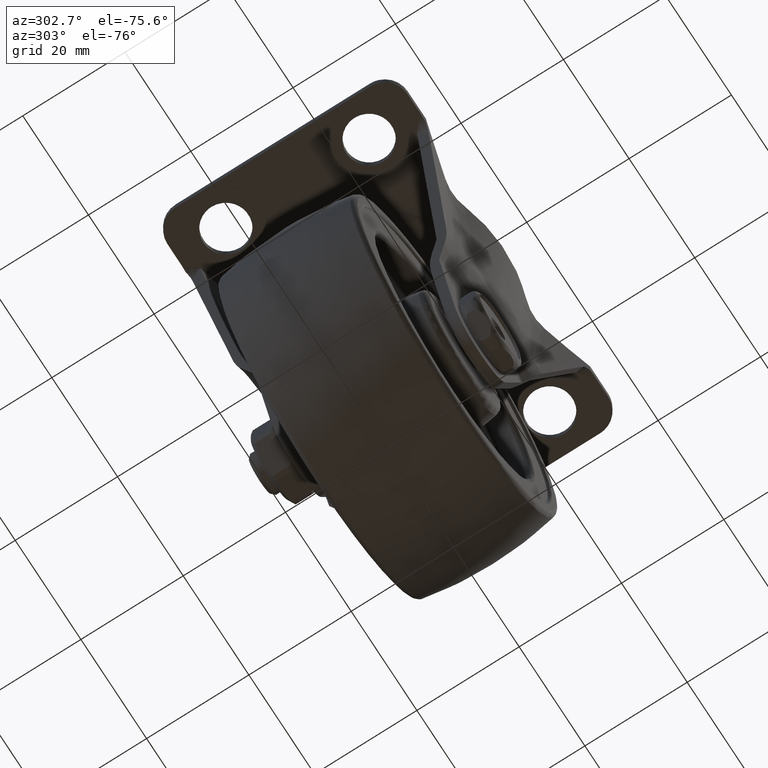
[diagram: clean part render]
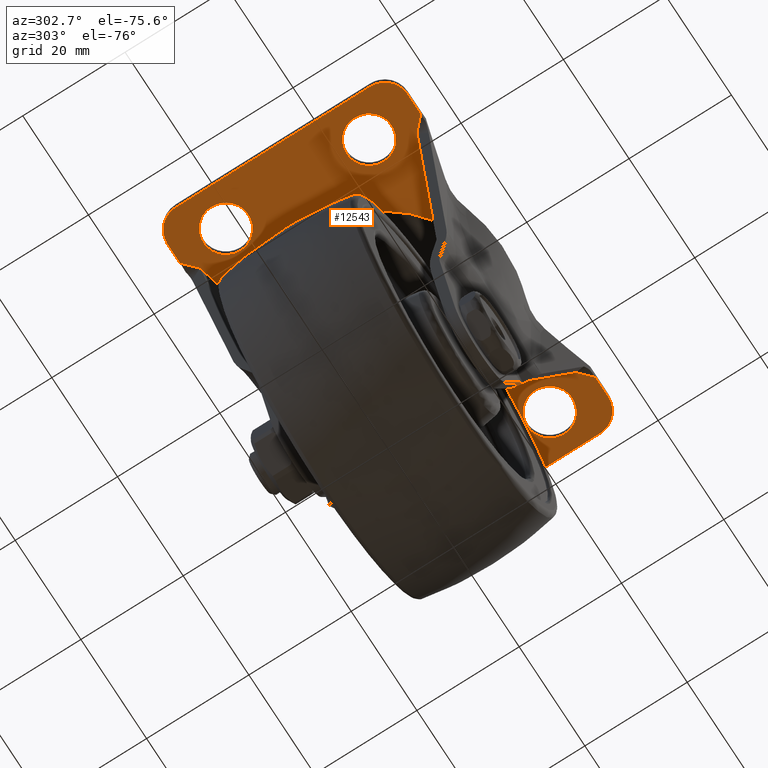
[diagram: same view with one face highlighted and labeled with its STEP entity id]
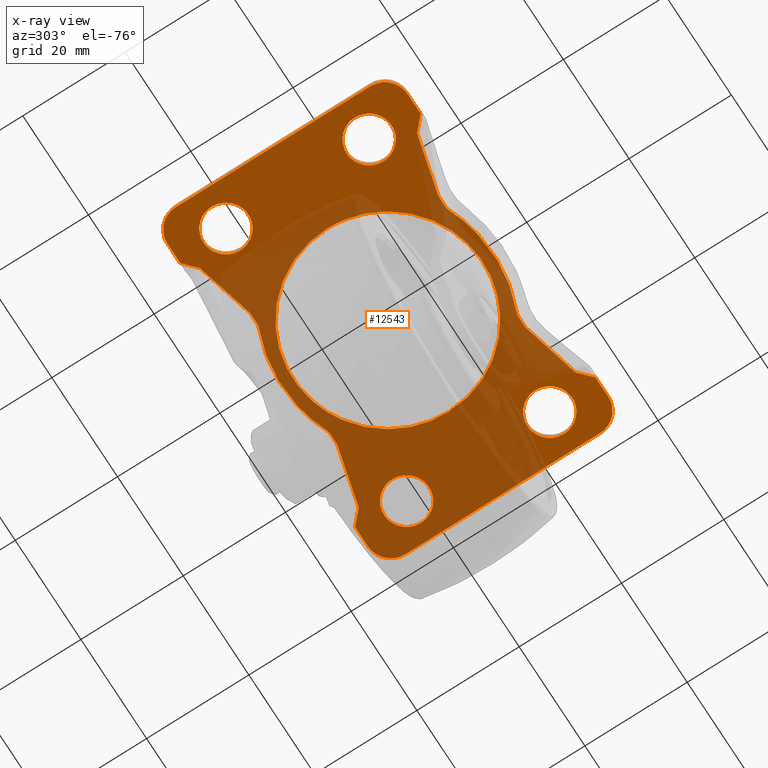
[diagram: x-ray of the same camera — body ghosted, the highlighted face saturated]
A machine part, auxiliary view. The second image highlights one B-rep face of the part: STEP entity #12543.
The next image is the same camera in x-ray: the body ghosted, the highlighted face saturated — about 57% of this face is hidden behind the body in this view.
In plain terms, the highlighted face is a freeform B-spline surface patch.
Its self-contained STEP definition (entity closure, byte-faithful):
#3669=CARTESIAN_POINT('',(-28.019350644389618,9.630757984710382,50.500000000000000));
#3670=VERTEX_POINT('',#3669);
#3671=CARTESIAN_POINT('',(-23.099999900000000,14.0,50.500000000000000));
#3672=VERTEX_POINT('',#3671);
#3673=CARTESIAN_POINT('',(-28.019350644389615,9.630757984710382,50.500000000000000));
#3674=CARTESIAN_POINT('',(-27.760586132488292,9.599999900000000,50.500000000000007));
#3675=CARTESIAN_POINT('',(-27.500000000000000,9.599999900000000,50.500000000000000));
#3676=CARTESIAN_POINT('',(-23.099999900000004,9.599999900000000,50.500000000000000));
#3677=CARTESIAN_POINT('',(-23.099999900000000,14.0,50.500000000000000));
#3685=(BOUNDED_CURVE()B_SPLINE_CURVE(2,(#3673,#3674,#3675,#3676,#3677),.UNSPECIFIED.,.F.,.U.)B_SPLINE_CURVE_WITH_KNOTS((3,2,3),(0.229562473508182,0.250000000000000,0.500000000000000),.UNSPECIFIED.)CURVE()GEOMETRIC_REPRESENTATION_ITEM()RATIONAL_B_SPLINE_CURVE((0.956026754173260,0.976055948324905,1.0,0.707106781186547,1.0))REPRESENTATION_ITEM(''));
#3686=EDGE_CURVE('',#3670,#3672,#3685,.T.);
#3727=CARTESIAN_POINT('',(-27.231386419853429,18.391793212864290,50.500000000000000));
#3728=VERTEX_POINT('',#3727);
#3734=CARTESIAN_POINT('',(-23.099999900000000,14.0,50.500000000000000));
#3735=CARTESIAN_POINT('',(-23.099999899999997,18.139106788288810,50.500000000000007));
#3736=CARTESIAN_POINT('',(-27.231386419853422,18.391793212864297,50.500000000000007));
#3744=(BOUNDED_CURVE()B_SPLINE_CURVE(2,(#3734,#3735,#3736),.UNSPECIFIED.,.F.,.U.)B_SPLINE_CURVE_WITH_KNOTS((3,3),(0.500000000000000,0.739332962235026),.UNSPECIFIED.)CURVE()GEOMETRIC_REPRESENTATION_ITEM()RATIONAL_B_SPLINE_CURVE((1.0,0.719603993291299,0.976072041658323))REPRESENTATION_ITEM(''));
#3745=EDGE_CURVE('',#3672,#3728,#3744,.T.);
#3768=CARTESIAN_POINT('',(-31.900000100000000,14.0,50.500000000000000));
#3769=VERTEX_POINT('',#3768);
#3770=CARTESIAN_POINT('',(-31.900000100000000,14.0,50.500000000000000));
#3771=CARTESIAN_POINT('',(-31.900000100000000,10.092031997170297,50.500000000000007));
#3772=CARTESIAN_POINT('',(-28.019350644389618,9.630757984710382,50.500000000000000));
#3780=(BOUNDED_CURVE()B_SPLINE_CURVE(2,(#3770,#3771,#3772),.UNSPECIFIED.,.F.,.U.)B_SPLINE_CURVE_WITH_KNOTS((3,3),(0.0,0.229562473508182),.UNSPECIFIED.)CURVE()GEOMETRIC_REPRESENTATION_ITEM()RATIONAL_B_SPLINE_CURVE((1.0,0.731050832861643,0.956026754173260))REPRESENTATION_ITEM(''));
#3781=EDGE_CURVE('',#3769,#3670,#3780,.T.);
#3783=CARTESIAN_POINT('',(-27.231386419853422,18.391793212864290,50.500000000000000));
#3784=CARTESIAN_POINT('',(-27.365567838342336,18.400000099999996,50.499999999999993));
#3785=CARTESIAN_POINT('',(-27.500000000000000,18.400000100000000,50.500000000000000));
#3786=CARTESIAN_POINT('',(-31.900000099999996,18.400000100000000,50.500000000000000));
#3787=CARTESIAN_POINT('',(-31.900000100000000,14.0,50.500000000000000));
#3795=(BOUNDED_CURVE()B_SPLINE_CURVE(2,(#3783,#3784,#3785,#3786,#3787),.UNSPECIFIED.,.F.,.U.)B_SPLINE_CURVE_WITH_KNOTS((3,2,3),(0.739332962235026,0.750000000000000,1.0),.UNSPECIFIED.)CURVE()GEOMETRIC_REPRESENTATION_ITEM()RATIONAL_B_SPLINE_CURVE((0.976072041658323,0.987502787895249,1.0,0.707106781186547,1.0))REPRESENTATION_ITEM(''));
#3796=EDGE_CURVE('',#3728,#3769,#3795,.T.);
#3855=CARTESIAN_POINT('',(-28.019350644389618,-18.369242015289618,50.500000000000000));
#3856=VERTEX_POINT('',#3855);
#3857=CARTESIAN_POINT('',(-23.099999900000000,-14.0,50.500000000000000));
#3858=VERTEX_POINT('',#3857);
#3859=CARTESIAN_POINT('',(-28.019350644389622,-18.369242015289622,50.500000000000000));
#3860=CARTESIAN_POINT('',(-27.760586132488289,-18.400000100000000,50.500000000000007));
#3861=CARTESIAN_POINT('',(-27.500000000000000,-18.400000100000000,50.500000000000000));
#3862=CARTESIAN_POINT('',(-23.099999900000004,-18.400000100000000,50.500000000000000));
#3863=CARTESIAN_POINT('',(-23.099999900000000,-14.0,50.500000000000000));
#3871=(BOUNDED_CURVE()B_SPLINE_CURVE(2,(#3859,#3860,#3861,#3862,#3863),.UNSPECIFIED.,.F.,.U.)B_SPLINE_CURVE_WITH_KNOTS((3,2,3),(0.229562473508182,0.250000000000000,0.500000000000000),.UNSPECIFIED.)CURVE()GEOMETRIC_REPRESENTATION_ITEM()RATIONAL_B_SPLINE_CURVE((0.956026754173260,0.976055948324905,1.0,0.707106781186547,1.0))REPRESENTATION_ITEM(''));
#3872=EDGE_CURVE('',#3856,#3858,#3871,.T.);
#3913=CARTESIAN_POINT('',(-27.231386419853429,-9.608206787135710,50.500000000000000));
#3914=VERTEX_POINT('',#3913);
#3920=CARTESIAN_POINT('',(-23.099999900000000,-14.0,50.500000000000000));
#3921=CARTESIAN_POINT('',(-23.099999899999997,-9.860893211711183,50.500000000000007));
#3922=CARTESIAN_POINT('',(-27.231386419853433,-9.608206787135710,50.500000000000007));
#3930=(BOUNDED_CURVE()B_SPLINE_CURVE(2,(#3920,#3921,#3922),.UNSPECIFIED.,.F.,.U.)B_SPLINE_CURVE_WITH_KNOTS((3,3),(0.500000000000000,0.739332962235026),.UNSPECIFIED.)CURVE()GEOMETRIC_REPRESENTATION_ITEM()RATIONAL_B_SPLINE_CURVE((1.0,0.719603993291299,0.976072041658323))REPRESENTATION_ITEM(''));
#3931=EDGE_CURVE('',#3858,#3914,#3930,.T.);
#3954=CARTESIAN_POINT('',(-31.900000100000000,-14.0,50.500000000000000));
#3955=VERTEX_POINT('',#3954);
#3956=CARTESIAN_POINT('',(-31.900000100000000,-14.0,50.500000000000000));
#3957=CARTESIAN_POINT('',(-31.900000100000000,-17.907968002829712,50.500000000000014));
#3958=CARTESIAN_POINT('',(-28.019350644389618,-18.369242015289618,50.500000000000000));
#3966=(BOUNDED_CURVE()B_SPLINE_CURVE(2,(#3956,#3957,#3958),.UNSPECIFIED.,.F.,.U.)B_SPLINE_CURVE_WITH_KNOTS((3,3),(0.0,0.229562473508182),.UNSPECIFIED.)CURVE()GEOMETRIC_REPRESENTATION_ITEM()RATIONAL_B_SPLINE_CURVE((1.0,0.731050832861642,0.956026754173260))REPRESENTATION_ITEM(''));
#3967=EDGE_CURVE('',#3955,#3856,#3966,.T.);
#3969=CARTESIAN_POINT('',(-27.231386419853429,-9.608206787135710,50.500000000000007));
#3970=CARTESIAN_POINT('',(-27.365567838342333,-9.599999900000000,50.500000000000000));
#3971=CARTESIAN_POINT('',(-27.500000000000000,-9.599999900000000,50.500000000000000));
#3972=CARTESIAN_POINT('',(-31.900000099999996,-9.599999900000000,50.500000000000000));
#3973=CARTESIAN_POINT('',(-31.900000100000000,-14.0,50.500000000000000));
#3981=(BOUNDED_CURVE()B_SPLINE_CURVE(2,(#3969,#3970,#3971,#3972,#3973),.UNSPECIFIED.,.F.,.U.)B_SPLINE_CURVE_WITH_KNOTS((3,2,3),(0.739332962235026,0.750000000000000,1.0),.UNSPECIFIED.)CURVE()GEOMETRIC_REPRESENTATION_ITEM()RATIONAL_B_SPLINE_CURVE((0.976072041658324,0.987502787895249,1.0,0.707106781186547,1.0))REPRESENTATION_ITEM(''));
#3982=EDGE_CURVE('',#3914,#3955,#3981,.T.);
#4041=CARTESIAN_POINT('',(26.980649355610382,9.630757984710382,50.500000000000000));
#4042=VERTEX_POINT('',#4041);
#4043=CARTESIAN_POINT('',(31.900000100000000,14.0,50.500000000000000));
#4044=VERTEX_POINT('',#4043);
#4045=CARTESIAN_POINT('',(26.980649355610385,9.630757984710382,50.500000000000000));
#4046=CARTESIAN_POINT('',(27.239413867511708,9.599999900000000,50.500000000000007));
#4047=CARTESIAN_POINT('',(27.500000000000000,9.599999900000000,50.500000000000000));
#4048=CARTESIAN_POINT('',(31.900000099999996,9.599999900000000,50.500000000000000));
#4049=CARTESIAN_POINT('',(31.900000100000000,14.0,50.500000000000000));
#4057=(BOUNDED_CURVE()B_SPLINE_CURVE(2,(#4045,#4046,#4047,#4048,#4049),.UNSPECIFIED.,.F.,.U.)B_SPLINE_CURVE_WITH_KNOTS((3,2,3),(0.229562473508182,0.250000000000000,0.500000000000000),.UNSPECIFIED.)CURVE()GEOMETRIC_REPRESENTATION_ITEM()RATIONAL_B_SPLINE_CURVE((0.956026754173260,0.976055948324905,1.0,0.707106781186547,1.0))REPRESENTATION_ITEM(''));
#4058=EDGE_CURVE('',#4042,#4044,#4057,.T.);
#4099=CARTESIAN_POINT('',(27.768613580146582,18.391793212864290,50.500000000000000));
#4100=VERTEX_POINT('',#4099);
#4106=CARTESIAN_POINT('',(31.900000100000000,14.0,50.500000000000000));
#4107=CARTESIAN_POINT('',(31.900000100000000,18.139106788288810,50.500000000000007));
#4108=CARTESIAN_POINT('',(27.768613580146575,18.391793212864286,50.500000000000007));
#4116=(BOUNDED_CURVE()B_SPLINE_CURVE(2,(#4106,#4107,#4108),.UNSPECIFIED.,.F.,.U.)B_SPLINE_CURVE_WITH_KNOTS((3,3),(0.500000000000000,0.739332962235026),.UNSPECIFIED.)CURVE()GEOMETRIC_REPRESENTATION_ITEM()RATIONAL_B_SPLINE_CURVE((1.0,0.719603993291299,0.976072041658323))REPRESENTATION_ITEM(''));
#4117=EDGE_CURVE('',#4044,#4100,#4116,.T.);
#4140=CARTESIAN_POINT('',(23.099999900000000,14.0,50.500000000000000));
#4141=VERTEX_POINT('',#4140);
#4142=CARTESIAN_POINT('',(23.099999900000000,14.0,50.500000000000000));
#4143=CARTESIAN_POINT('',(23.099999900000004,10.092031997170297,50.500000000000007));
#4144=CARTESIAN_POINT('',(26.980649355610378,9.630757984710382,50.500000000000000));
#4152=(BOUNDED_CURVE()B_SPLINE_CURVE(2,(#4142,#4143,#4144),.UNSPECIFIED.,.F.,.U.)B_SPLINE_CURVE_WITH_KNOTS((3,3),(0.0,0.229562473508182),.UNSPECIFIED.)CURVE()GEOMETRIC_REPRESENTATION_ITEM()RATIONAL_B_SPLINE_CURVE((1.0,0.731050832861643,0.956026754173260))REPRESENTATION_ITEM(''));
#4153=EDGE_CURVE('',#4141,#4042,#4152,.T.);
#4155=CARTESIAN_POINT('',(27.768613580146575,18.391793212864286,50.500000000000007));
#4156=CARTESIAN_POINT('',(27.634432161657664,18.400000100000000,50.500000000000000));
#4157=CARTESIAN_POINT('',(27.500000000000000,18.400000100000000,50.500000000000000));
#4158=CARTESIAN_POINT('',(23.099999900000004,18.400000100000000,50.500000000000000));
#4159=CARTESIAN_POINT('',(23.099999900000000,14.0,50.500000000000000));
#4167=(BOUNDED_CURVE()B_SPLINE_CURVE(2,(#4155,#4156,#4157,#4158,#4159),.UNSPECIFIED.,.F.,.U.)B_SPLINE_CURVE_WITH_KNOTS((3,2,3),(0.739332962235026,0.750000000000000,1.0),.UNSPECIFIED.)CURVE()GEOMETRIC_REPRESENTATION_ITEM()RATIONAL_B_SPLINE_CURVE((0.976072041658323,0.987502787895248,1.0,0.707106781186547,1.0))REPRESENTATION_ITEM(''));
#4168=EDGE_CURVE('',#4100,#4141,#4167,.T.);
#4227=CARTESIAN_POINT('',(26.980649355610382,-18.369242015289618,50.500000000000000));
#4228=VERTEX_POINT('',#4227);
#4229=CARTESIAN_POINT('',(31.900000100000000,-14.0,50.500000000000000));
#4230=VERTEX_POINT('',#4229);
#4231=CARTESIAN_POINT('',(26.980649355610385,-18.369242015289625,50.500000000000000));
#4232=CARTESIAN_POINT('',(27.239413867511708,-18.400000100000000,50.499999999999993));
#4233=CARTESIAN_POINT('',(27.500000000000000,-18.400000100000000,50.500000000000000));
#4234=CARTESIAN_POINT('',(31.900000099999996,-18.400000100000000,50.500000000000000));
#4235=CARTESIAN_POINT('',(31.900000100000000,-14.0,50.500000000000000));
#4243=(BOUNDED_CURVE()B_SPLINE_CURVE(2,(#4231,#4232,#4233,#4234,#4235),.UNSPECIFIED.,.F.,.U.)B_SPLINE_CURVE_WITH_KNOTS((3,2,3),(0.229562473508182,0.250000000000000,0.500000000000000),.UNSPECIFIED.)CURVE()GEOMETRIC_REPRESENTATION_ITEM()RATIONAL_B_SPLINE_CURVE((0.956026754173260,0.976055948324905,1.0,0.707106781186547,1.0))REPRESENTATION_ITEM(''));
#4244=EDGE_CURVE('',#4228,#4230,#4243,.T.);
#4285=CARTESIAN_POINT('',(27.768613580146582,-9.608206787135710,50.500000000000000));
#4286=VERTEX_POINT('',#4285);
#4292=CARTESIAN_POINT('',(31.900000100000000,-14.0,50.500000000000000));
#4293=CARTESIAN_POINT('',(31.900000100000000,-9.860893211711183,50.500000000000007));
#4294=CARTESIAN_POINT('',(27.768613580146575,-9.608206787135710,50.500000000000007));
#4302=(BOUNDED_CURVE()B_SPLINE_CURVE(2,(#4292,#4293,#4294),.UNSPECIFIED.,.F.,.U.)B_SPLINE_CURVE_WITH_KNOTS((3,3),(0.500000000000000,0.739332962235026),.UNSPECIFIED.)CURVE()GEOMETRIC_REPRESENTATION_ITEM()RATIONAL_B_SPLINE_CURVE((1.0,0.719603993291299,0.976072041658323))REPRESENTATION_ITEM(''));
#4303=EDGE_CURVE('',#4230,#4286,#4302,.T.);
#4326=CARTESIAN_POINT('',(23.099999900000000,-14.0,50.500000000000000));
#4327=VERTEX_POINT('',#4326);
#4328=CARTESIAN_POINT('',(23.099999900000000,-14.0,50.500000000000000));
#4329=CARTESIAN_POINT('',(23.099999900000004,-17.907968002829705,50.500000000000007));
#4330=CARTESIAN_POINT('',(26.980649355610378,-18.369242015289625,50.500000000000000));
#4338=(BOUNDED_CURVE()B_SPLINE_CURVE(2,(#4328,#4329,#4330),.UNSPECIFIED.,.F.,.U.)B_SPLINE_CURVE_WITH_KNOTS((3,3),(0.0,0.229562473508182),.UNSPECIFIED.)CURVE()GEOMETRIC_REPRESENTATION_ITEM()RATIONAL_B_SPLINE_CURVE((1.0,0.731050832861643,0.956026754173260))REPRESENTATION_ITEM(''));
#4339=EDGE_CURVE('',#4327,#4228,#4338,.T.);
#4341=CARTESIAN_POINT('',(27.768613580146575,-9.608206787135710,50.500000000000007));
#4342=CARTESIAN_POINT('',(27.634432161657664,-9.599999900000000,50.500000000000000));
#4343=CARTESIAN_POINT('',(27.500000000000000,-9.599999900000000,50.500000000000000));
#4344=CARTESIAN_POINT('',(23.099999900000004,-9.599999900000000,50.500000000000000));
#4345=CARTESIAN_POINT('',(23.099999900000000,-14.0,50.500000000000000));
#4353=(BOUNDED_CURVE()B_SPLINE_CURVE(2,(#4341,#4342,#4343,#4344,#4345),.UNSPECIFIED.,.F.,.U.)B_SPLINE_CURVE_WITH_KNOTS((3,2,3),(0.739332962235026,0.750000000000000,1.0),.UNSPECIFIED.)CURVE()GEOMETRIC_REPRESENTATION_ITEM()RATIONAL_B_SPLINE_CURVE((0.976072041658323,0.987502787895248,1.0,0.707106781186547,1.0))REPRESENTATION_ITEM(''));
#4354=EDGE_CURVE('',#4286,#4327,#4353,.T.);
#5603=CARTESIAN_POINT('',(10.000241879435590,15.564227007818580,50.499999999932498));
#5604=VERTEX_POINT('',#5603);
#5618=CARTESIAN_POINT('',(18.500000000000000,-3.549170E-015,50.500000000000000));
#5619=VERTEX_POINT('',#5618);
#5620=CARTESIAN_POINT('',(10.000241879435588,15.564227007818571,50.499999999932498));
#5621=CARTESIAN_POINT('',(18.500000000000004,10.103008980172044,50.500000000000000));
#5622=CARTESIAN_POINT('',(18.500000000000000,-3.549170E-015,50.500000000000000));
#5630=(BOUNDED_CURVE()B_SPLINE_CURVE(2,(#5620,#5621,#5622),.UNSPECIFIED.,.F.,.U.)B_SPLINE_CURVE_WITH_KNOTS((3,3),(0.342539826043882,0.500000000000000),.UNSPECIFIED.)CURVE()GEOMETRIC_REPRESENTATION_ITEM()RATIONAL_B_SPLINE_CURVE((0.863428933516527,0.815523931260265,1.0))REPRESENTATION_ITEM(''));
#5631=EDGE_CURVE('',#5604,#5619,#5630,.T.);
#5633=CARTESIAN_POINT('',(-18.500000000000000,-3.549170E-015,50.500000000000000));
#5634=VERTEX_POINT('',#5633);
#5635=CARTESIAN_POINT('',(18.500000000000000,-3.549170E-015,50.500000000000000));
#5636=CARTESIAN_POINT('',(18.500000000000000,-18.500000000000000,50.499999999999993));
#5637=CARTESIAN_POINT('',(0.0,-18.500000000000000,50.500000000000000));
#5638=CARTESIAN_POINT('',(-18.500000000000000,-18.500000000000000,50.499999999999993));
#5639=CARTESIAN_POINT('',(-18.500000000000000,-3.549170E-015,50.500000000000000));
#5647=(BOUNDED_CURVE()B_SPLINE_CURVE(2,(#5635,#5636,#5637,#5638,#5639),.UNSPECIFIED.,.F.,.U.)B_SPLINE_CURVE_WITH_KNOTS((3,2,3),(0.500000000000000,0.750000000000000,1.0),.UNSPECIFIED.)CURVE()GEOMETRIC_REPRESENTATION_ITEM()RATIONAL_B_SPLINE_CURVE((1.0,0.707106781186548,1.0,0.707106781186548,1.0))REPRESENTATION_ITEM(''));
#5648=EDGE_CURVE('',#5619,#5634,#5647,.T.);
#5650=CARTESIAN_POINT('',(-14.966814395693611,10.874027167265769,50.499999999624350));
#5651=VERTEX_POINT('',#5650);
#5652=CARTESIAN_POINT('',(-18.500000000000000,-3.549170E-015,50.500000000000000));
#5653=CARTESIAN_POINT('',(-18.500000000000004,6.011014380336952,50.499999999999993));
#5654=CARTESIAN_POINT('',(-14.966814395693614,10.874027167265771,50.499999999624343));
#5662=(BOUNDED_CURVE()B_SPLINE_CURVE(2,(#5652,#5653,#5654),.UNSPECIFIED.,.F.,.U.)B_SPLINE_CURVE_WITH_KNOTS((3,3),(0.0,0.101249659000680),.UNSPECIFIED.)CURVE()GEOMETRIC_REPRESENTATION_ITEM()RATIONAL_B_SPLINE_CURVE((1.0,0.881378645886105,0.858840265006057))REPRESENTATION_ITEM(''));
#5663=EDGE_CURVE('',#5634,#5651,#5662,.T.);
#5746=CARTESIAN_POINT('',(-14.966814395693614,10.874027167265771,50.499999999624343));
#5747=CARTESIAN_POINT('',(-9.426220815614819,18.499999999999993,50.500000000000000));
#5748=CARTESIAN_POINT('',(0.0,18.500000000000000,50.500000000000000));
#5749=CARTESIAN_POINT('',(5.431048669547441,18.499999999999996,50.500000000000000));
#5750=CARTESIAN_POINT('',(10.000241879435588,15.564227007818571,50.499999999932498));
#5758=(BOUNDED_CURVE()B_SPLINE_CURVE(2,(#5746,#5747,#5748,#5749,#5750),.UNSPECIFIED.,.F.,.U.)B_SPLINE_CURVE_WITH_KNOTS((3,2,3),(0.101249659000680,0.250000000000000,0.342539826043882),.UNSPECIFIED.)CURVE()GEOMETRIC_REPRESENTATION_ITEM()RATIONAL_B_SPLINE_CURVE((0.858840265006057,0.825728135300442,1.0,0.891582849926282,0.863428933516527))REPRESENTATION_ITEM(''));
#5759=EDGE_CURVE('',#5651,#5604,#5758,.T.);
#5871=CARTESIAN_POINT('',(-10.324252689177060,-18.575363279753098,50.500000000000000));
#5872=VERTEX_POINT('',#5871);
#5873=CARTESIAN_POINT('',(-11.147902669042900,-18.406240285580949,50.500000000000000));
#5874=VERTEX_POINT('',#5873);
#5875=CARTESIAN_POINT('',(-10.324252689177060,-18.575363279753098,50.500000000000000));
#5876=CARTESIAN_POINT('',(-10.454943470160620,-18.519219030960031,50.500000000000007));
#5877=CARTESIAN_POINT('',(-10.589086307833011,-18.477358420331321,50.500000000000007));
#5878=CARTESIAN_POINT('',(-10.795231024361280,-18.434968359082511,50.500000000000007));
#5879=CARTESIAN_POINT('',(-10.864774529348180,-18.424266849894821,50.500000000000007));
#5880=CARTESIAN_POINT('',(-11.005558631860330,-18.409885922387140,50.500000000000007));
#5881=CARTESIAN_POINT('',(-11.076789628579920,-18.406240285580949,50.500000000000007));
#5882=CARTESIAN_POINT('',(-11.147902669042900,-18.406240285580949,50.500000000000000));
#5883=B_SPLINE_CURVE_WITH_KNOTS('',3,(#5875,#5876,#5877,#5878,#5879,#5880,#5881,#5882),.UNSPECIFIED.,.F.,.U.,(4,2,2,4),(0.0,0.500000000000001,0.750000000000001,1.0),.UNSPECIFIED.);
#5884=EDGE_CURVE('',#5872,#5874,#5883,.T.);
#5886=CARTESIAN_POINT('',(10.324252689177060,-18.575363279753098,50.500000000000000));
#5887=VERTEX_POINT('',#5886);
#5901=CARTESIAN_POINT('',(11.147902669042900,-18.406240285580949,50.500000000000000));
#5902=VERTEX_POINT('',#5901);
#5903=CARTESIAN_POINT('',(11.147902669042900,-18.406240285580949,50.500000000000000));
#5904=CARTESIAN_POINT('',(11.005662561606639,-18.406240285580949,50.500000000000021));
#5905=CARTESIAN_POINT('',(10.865865188238191,-18.420577739270211,50.499999999999993));
#5906=CARTESIAN_POINT('',(10.659694103352001,-18.462773510566780,50.500000000000000));
#5907=CARTESIAN_POINT('',(10.591562681261451,-18.480315071115399,50.500000000000000));
#5908=CARTESIAN_POINT('',(10.456519067832181,-18.522554380301671,50.499999999999993));
#5909=CARTESIAN_POINT('',(10.389602791073610,-18.547289131355491,50.499999999999993));
#5910=CARTESIAN_POINT('',(10.324252689177079,-18.575363279753098,50.500000000000000));
#5911=B_SPLINE_CURVE_WITH_KNOTS('',3,(#5903,#5904,#5905,#5906,#5907,#5908,#5909,#5910),.UNSPECIFIED.,.F.,.U.,(4,2,2,4),(0.0,0.500000000000003,0.750000000000001,1.0),.UNSPECIFIED.);
#5912=EDGE_CURVE('',#5902,#5887,#5911,.T.);
#5944=CARTESIAN_POINT('',(-13.020022977027621,-18.406240285580949,50.500000000000000));
#5945=VERTEX_POINT('',#5944);
#5946=CARTESIAN_POINT('',(-13.520108598479640,-18.469770721860151,50.500000000000000));
#5947=VERTEX_POINT('',#5946);
#5948=CARTESIAN_POINT('',(-13.020022977027621,-18.406240285580949,50.500000000000000));
#5949=CARTESIAN_POINT('',(-13.274101213049507,-18.406240285580957,50.500000000000000));
#5950=CARTESIAN_POINT('',(-13.520108598479631,-18.469770721860169,50.500000000000000));
#5958=(BOUNDED_CURVE()B_SPLINE_CURVE(2,(#5948,#5949,#5950),.UNSPECIFIED.,.F.,.U.)CURVE()GEOMETRIC_REPRESENTATION_ITEM()QUASI_UNIFORM_CURVE()RATIONAL_B_SPLINE_CURVE((1.0,0.992026910386102,1.0))REPRESENTATION_ITEM(''));
#5959=EDGE_CURVE('',#5945,#5947,#5958,.T.);
#6320=CARTESIAN_POINT('',(13.520108598479640,-18.469770721860151,50.500000000000000));
#6321=VERTEX_POINT('',#6320);
#6322=CARTESIAN_POINT('',(13.020022977027621,-18.406240285580949,50.500000000000000));
#6323=VERTEX_POINT('',#6322);
#6324=CARTESIAN_POINT('',(13.520108598479631,-18.469770721860169,50.500000000000000));
#6325=CARTESIAN_POINT('',(13.274101213049505,-18.406240285580953,50.500000000000000));
#6326=CARTESIAN_POINT('',(13.020022977027621,-18.406240285580949,50.500000000000000));
#6334=(BOUNDED_CURVE()B_SPLINE_CURVE(2,(#6324,#6325,#6326),.UNSPECIFIED.,.F.,.U.)CURVE()GEOMETRIC_REPRESENTATION_ITEM()QUASI_UNIFORM_CURVE()RATIONAL_B_SPLINE_CURVE((1.0,0.992026910386102,1.0))REPRESENTATION_ITEM(''));
#6335=EDGE_CURVE('',#6321,#6323,#6334,.T.);
#6672=CARTESIAN_POINT('',(10.324252689177101,18.575363279753049,50.500000000000000));
#6673=VERTEX_POINT('',#6672);
#6674=CARTESIAN_POINT('',(11.147902669042940,18.406240285580949,50.500000000000000));
#6675=VERTEX_POINT('',#6674);
#6676=CARTESIAN_POINT('',(10.324252689177060,18.575363279753098,50.500000000000000));
#6677=CARTESIAN_POINT('',(10.454943470160609,18.519219030960020,50.500000000000000));
#6678=CARTESIAN_POINT('',(10.589086307833041,18.477358420331282,50.499999999999993));
#6679=CARTESIAN_POINT('',(10.795231024361319,18.434968359082468,50.500000000000000));
#6680=CARTESIAN_POINT('',(10.864774529348219,18.424266849894789,50.500000000000000));
#6681=CARTESIAN_POINT('',(11.005558631860380,18.409885922387090,50.499999999999993));
#6682=CARTESIAN_POINT('',(11.076789628579959,18.406240285580900,50.500000000000000));
#6683=CARTESIAN_POINT('',(11.147902669042940,18.406240285580900,50.500000000000000));
#6684=B_SPLINE_CURVE_WITH_KNOTS('',3,(#6676,#6677,#6678,#6679,#6680,#6681,#6682,#6683),.UNSPECIFIED.,.F.,.U.,(4,2,2,4),(0.0,0.500000000000000,0.750000000000000,1.0),.UNSPECIFIED.);
#6685=EDGE_CURVE('',#6673,#6675,#6684,.T.);
#6687=CARTESIAN_POINT('',(-10.324252689177101,18.575363279753049,50.500000000000000));
#6688=VERTEX_POINT('',#6687);
#6702=CARTESIAN_POINT('',(-11.147902669042940,18.406240285580949,50.500000000000000));
#6703=VERTEX_POINT('',#6702);
#6704=CARTESIAN_POINT('',(-11.147902669042940,18.406240285580949,50.500000000000000));
#6705=CARTESIAN_POINT('',(-11.005662561606680,18.406240285580960,50.500000000000007));
#6706=CARTESIAN_POINT('',(-10.865865188238230,18.420577739270179,50.500000000000007));
#6707=CARTESIAN_POINT('',(-10.659694103352040,18.462773510566759,50.500000000000007));
#6708=CARTESIAN_POINT('',(-10.591562681261490,18.480315071115371,50.500000000000007));
#6709=CARTESIAN_POINT('',(-10.456519067832231,18.522554380301649,50.500000000000007));
#6710=CARTESIAN_POINT('',(-10.389602791073610,18.547289131355502,50.500000000000007));
#6711=CARTESIAN_POINT('',(-10.324252689177079,18.575363279753098,50.500000000000000));
#6712=B_SPLINE_CURVE_WITH_KNOTS('',3,(#6704,#6705,#6706,#6707,#6708,#6709,#6710,#6711),.UNSPECIFIED.,.F.,.U.,(4,2,2,4),(0.0,0.500000000000001,0.750000000000001,1.0),.UNSPECIFIED.);
#6713=EDGE_CURVE('',#6703,#6688,#6712,.T.);
#6915=CARTESIAN_POINT('',(13.020022977027599,18.406240285580949,50.500000000000000));
#6916=VERTEX_POINT('',#6915);
#6917=CARTESIAN_POINT('',(13.520108598479620,18.469770721860151,50.500000000000000));
#6918=VERTEX_POINT('',#6917);
#6919=CARTESIAN_POINT('',(13.020022977027599,18.406240285580949,50.500000000000000));
#6920=CARTESIAN_POINT('',(13.274101213049486,18.406240285580953,50.500000000000000));
#6921=CARTESIAN_POINT('',(13.520108598479609,18.469770721860169,50.500000000000000));
#6929=(BOUNDED_CURVE()B_SPLINE_CURVE(2,(#6919,#6920,#6921),.UNSPECIFIED.,.F.,.U.)CURVE()GEOMETRIC_REPRESENTATION_ITEM()QUASI_UNIFORM_CURVE()RATIONAL_B_SPLINE_CURVE((1.0,0.992026910386102,1.0))REPRESENTATION_ITEM(''));
#6930=EDGE_CURVE('',#6916,#6918,#6929,.T.);
#7121=CARTESIAN_POINT('',(-13.520108598479620,18.469770721860151,50.500000000000000));
#7122=VERTEX_POINT('',#7121);
#7123=CARTESIAN_POINT('',(-13.020022977027599,18.406240285580949,50.500000000000000));
#7124=VERTEX_POINT('',#7123);
#7125=CARTESIAN_POINT('',(-13.520108598479620,18.469770721860169,50.500000000000000));
#7126=CARTESIAN_POINT('',(-13.274101213049486,18.406240285580953,50.500000000000000));
#7127=CARTESIAN_POINT('',(-13.020022977027599,18.406240285580949,50.500000000000000));
#7135=(BOUNDED_CURVE()B_SPLINE_CURVE(2,(#7125,#7126,#7127),.UNSPECIFIED.,.F.,.U.)CURVE()GEOMETRIC_REPRESENTATION_ITEM()QUASI_UNIFORM_CURVE()RATIONAL_B_SPLINE_CURVE((1.0,0.992026910386102,1.0))REPRESENTATION_ITEM(''));
#7136=EDGE_CURVE('',#7122,#7124,#7135,.T.);
#10610=CARTESIAN_POINT('',(-24.168787795165301,21.219750093333349,50.500000000000000));
#10611=VERTEX_POINT('',#10610);
#10619=CARTESIAN_POINT('',(-25.392797826231220,22.359875046666659,50.500000000000000));
#10620=VERTEX_POINT('',#10619);
#10621=CARTESIAN_POINT('',(-25.392797826231210,22.359875046666659,50.500000000000000));
#10622=CARTESIAN_POINT('',(-24.984794482542579,21.979833395555541,50.500000000000000));
#10623=CARTESIAN_POINT('',(-24.576791138853949,21.599791744444421,50.500000000000000));
#10624=CARTESIAN_POINT('',(-24.168787795165301,21.219750093333300,50.500000000000000));
#10625=B_SPLINE_CURVE_WITH_KNOTS('',3,(#10621,#10622,#10623,#10624),.UNSPECIFIED.,.F.,.U.,(4,4),(0.833333333333332,1.0),.UNSPECIFIED.);
#10626=EDGE_CURVE('',#10620,#10611,#10625,.T.);
#10628=CARTESIAN_POINT('',(-26.616807857297150,23.500000000000000,50.500000000000000));
#10629=VERTEX_POINT('',#10628);
#10630=CARTESIAN_POINT('',(-26.616807857297140,23.500000000000011,50.500000000000000));
#10631=CARTESIAN_POINT('',(-26.539998836418189,23.428454931640619,50.500000000000000));
#10632=CARTESIAN_POINT('',(-26.463189815539248,23.356909863281238,50.500000000000000));
#10633=CARTESIAN_POINT('',(-26.386380794660301,23.285364794921851,50.500000000000000));
#10634=CARTESIAN_POINT('',(-26.055186471850590,22.976868212170121,50.500000000000000));
#10635=CARTESIAN_POINT('',(-25.723992149040900,22.668371629418392,50.500000000000000));
#10636=CARTESIAN_POINT('',(-25.392797826231210,22.359875046666659,50.500000000000000));
#10637=B_SPLINE_CURVE_WITH_KNOTS('',3,(#10630,#10631,#10632,#10633,#10634,#10635,#10636),.UNSPECIFIED.,.F.,.U.,(4,3,4),(0.666666666666663,0.698042643549818,0.833333333333332),.UNSPECIFIED.);
#10638=EDGE_CURVE('',#10629,#10620,#10637,.T.);
#10685=CARTESIAN_POINT('',(-25.392797826231369,-22.359875046666730,50.499999999999993));
#10686=VERTEX_POINT('',#10685);
#10687=CARTESIAN_POINT('',(-26.616807857297399,-23.500000000000000,50.500000000000000));
#10688=VERTEX_POINT('',#10687);
#10689=CARTESIAN_POINT('',(-25.392797826231359,-22.359875046666730,50.500000000000000));
#10690=CARTESIAN_POINT('',(-25.723992149040999,-22.668371629418349,50.500000000000000));
#10691=CARTESIAN_POINT('',(-26.055186471850650,-22.976868212169979,50.500000000000000));
#10692=CARTESIAN_POINT('',(-26.386380794660301,-23.285364794921598,50.500000000000000));
#10693=CARTESIAN_POINT('',(-26.463189815539341,-23.356909863281071,50.500000000000000));
#10694=CARTESIAN_POINT('',(-26.539998836418391,-23.428454931640541,50.500000000000000));
#10695=CARTESIAN_POINT('',(-26.616807857297431,-23.500000000000011,50.500000000000000));
#10696=B_SPLINE_CURVE_WITH_KNOTS('',3,(#10689,#10690,#10691,#10692,#10693,#10694,#10695),.UNSPECIFIED.,.F.,.U.,(4,3,4),(0.166666666666670,0.301957356450148,0.333333333333340),.UNSPECIFIED.);
#10697=EDGE_CURVE('',#10686,#10688,#10696,.T.);
#10699=CARTESIAN_POINT('',(-24.168787795165301,-21.219750093333399,50.500000000000000));
#10700=VERTEX_POINT('',#10699);
#10701=CARTESIAN_POINT('',(-24.168787795165301,-21.219750093333449,50.500000000000000));
#10702=CARTESIAN_POINT('',(-24.576791138853999,-21.599791744444531,50.500000000000000));
#10703=CARTESIAN_POINT('',(-24.984794482542679,-21.979833395555630,50.500000000000000));
#10704=CARTESIAN_POINT('',(-25.392797826231359,-22.359875046666730,50.500000000000000));
#10705=B_SPLINE_CURVE_WITH_KNOTS('',3,(#10701,#10702,#10703,#10704),.UNSPECIFIED.,.F.,.U.,(4,4),(0.0,0.166666666666670),.UNSPECIFIED.);
#10706=EDGE_CURVE('',#10700,#10686,#10705,.T.);
#10805=CARTESIAN_POINT('',(24.168783783484798,-21.219749057332649,50.500000000000000));
#10806=VERTEX_POINT('',#10805);
#10814=CARTESIAN_POINT('',(25.392794484513569,-22.359874528666310,50.500000000000000));
#10815=VERTEX_POINT('',#10814);
#10816=CARTESIAN_POINT('',(25.392794484513569,-22.359874528666310,50.500000000000000));
#10817=CARTESIAN_POINT('',(24.984790917503972,-21.979832704888409,50.500000000000000));
#10818=CARTESIAN_POINT('',(24.576787350494389,-21.599790881110501,50.500000000000000));
#10819=CARTESIAN_POINT('',(24.168783783484798,-21.219749057332599,50.500000000000000));
#10820=B_SPLINE_CURVE_WITH_KNOTS('',3,(#10816,#10817,#10818,#10819),.UNSPECIFIED.,.F.,.U.,(4,4),(0.166666666666670,0.333333333333340),.UNSPECIFIED.);
#10821=EDGE_CURVE('',#10815,#10806,#10820,.T.);
#10823=CARTESIAN_POINT('',(26.616805185542351,-23.500000000000000,50.500000000000000));
#10824=VERTEX_POINT('',#10823);
#10825=CARTESIAN_POINT('',(26.616805185542368,-23.500000000000028,50.500000000000000));
#10826=CARTESIAN_POINT('',(26.539995786777389,-23.428454586307019,50.500000000000000));
#10827=CARTESIAN_POINT('',(26.463186388012421,-23.356909172614010,50.500000000000000));
#10828=CARTESIAN_POINT('',(26.386376989247449,-23.285363758921001,50.500000000000000));
#10829=CARTESIAN_POINT('',(26.055182821002809,-22.976867348836109,50.500000000000000));
#10830=CARTESIAN_POINT('',(25.723988652758180,-22.668370938751210,50.500000000000000));
#10831=CARTESIAN_POINT('',(25.392794484513569,-22.359874528666310,50.500000000000000));
#10832=B_SPLINE_CURVE_WITH_KNOTS('',3,(#10825,#10826,#10827,#10828,#10829,#10830,#10831),.UNSPECIFIED.,.F.,.U.,(4,3,4),(0.0,0.031376114073356,0.166666666666670),.UNSPECIFIED.);
#10833=EDGE_CURVE('',#10824,#10815,#10832,.T.);
#10901=CARTESIAN_POINT('',(26.616805185542201,23.500000000000000,50.500000000000000));
#10902=VERTEX_POINT('',#10901);
#10918=CARTESIAN_POINT('',(25.392794484513480,22.359874528666289,50.499999999999993));
#10919=VERTEX_POINT('',#10918);
#10920=CARTESIAN_POINT('',(25.392794484513480,22.359874528666289,50.500000000000000));
#10921=CARTESIAN_POINT('',(25.723988652758131,22.668370938751220,50.500000000000000));
#10922=CARTESIAN_POINT('',(26.055182821002791,22.976867348836159,50.500000000000000));
#10923=CARTESIAN_POINT('',(26.386376989247449,23.285363758921100,50.500000000000000));
#10924=CARTESIAN_POINT('',(26.463186388012360,23.356909172614060,50.500000000000000));
#10925=CARTESIAN_POINT('',(26.539995786777279,23.428454586307030,50.500000000000000));
#10926=CARTESIAN_POINT('',(26.616805185542201,23.499999999999989,50.500000000000000));
#10927=B_SPLINE_CURVE_WITH_KNOTS('',3,(#10920,#10921,#10922,#10923,#10924,#10925,#10926),.UNSPECIFIED.,.F.,.U.,(4,3,4),(0.833333333333333,0.968623885926665,1.0),.UNSPECIFIED.);
#10928=EDGE_CURVE('',#10919,#10902,#10927,.T.);
#10930=CARTESIAN_POINT('',(24.168783783484798,21.219749057332649,50.500000000000000));
#10931=VERTEX_POINT('',#10930);
#10932=CARTESIAN_POINT('',(24.168783783484798,21.219749057332599,50.500000000000000));
#10933=CARTESIAN_POINT('',(24.576787350494360,21.599790881110511,50.500000000000000));
#10934=CARTESIAN_POINT('',(24.984790917503911,21.979832704888398,50.500000000000000));
#10935=CARTESIAN_POINT('',(25.392794484513480,22.359874528666289,50.500000000000000));
#10936=B_SPLINE_CURVE_WITH_KNOTS('',3,(#10932,#10933,#10934,#10935),.UNSPECIFIED.,.F.,.U.,(4,4),(0.666666666666665,0.833333333333333),.UNSPECIFIED.);
#10937=EDGE_CURVE('',#10931,#10919,#10936,.T.);
#12068=CARTESIAN_POINT('',(-24.168787795165301,-21.219750093333399,50.500000000000000));
#12069=CARTESIAN_POINT('',(-13.520108598479640,-18.469770721860151,50.500000000000000));
#12070=QUASI_UNIFORM_CURVE('',1,(#12068,#12069),.UNSPECIFIED.,.F.,.U.);
#12071=EDGE_CURVE('',#10700,#5947,#12070,.T.);
#12095=CARTESIAN_POINT('',(13.520108598479640,-18.469770721860151,50.500000000000000));
#12096=CARTESIAN_POINT('',(24.168783783484798,-21.219749057332649,50.500000000000000));
#12097=QUASI_UNIFORM_CURVE('',1,(#12095,#12096),.UNSPECIFIED.,.F.,.U.);
#12098=EDGE_CURVE('',#6321,#10806,#12097,.T.);
#12115=CARTESIAN_POINT('',(-13.520108598479620,18.469770721860151,50.500000000000000));
#12116=CARTESIAN_POINT('',(-24.168787795165301,21.219750093333349,50.500000000000000));
#12117=QUASI_UNIFORM_CURVE('',1,(#12115,#12116),.UNSPECIFIED.,.F.,.U.);
#12118=EDGE_CURVE('',#7122,#10611,#12117,.T.);
#12135=CARTESIAN_POINT('',(24.168783783484798,21.219749057332649,50.500000000000000));
#12136=CARTESIAN_POINT('',(13.520108598479620,18.469770721860151,50.500000000000000));
#12137=QUASI_UNIFORM_CURVE('',1,(#12135,#12136),.UNSPECIFIED.,.F.,.U.);
#12138=EDGE_CURVE('',#10931,#6918,#12137,.T.);
#12157=CARTESIAN_POINT('',(-10.324252689177101,18.575363279753081,50.500000000000000));
#12158=CARTESIAN_POINT('',(3.054507E-014,23.010621889590798,50.500000000000007));
#12159=CARTESIAN_POINT('',(10.324252689177150,18.575363279753059,50.500000000000000));
#12167=(BOUNDED_CURVE()B_SPLINE_CURVE(2,(#12157,#12158,#12159),.UNSPECIFIED.,.F.,.U.)CURVE()GEOMETRIC_REPRESENTATION_ITEM()QUASI_UNIFORM_CURVE()RATIONAL_B_SPLINE_CURVE((1.0,0.919423541255545,1.0))REPRESENTATION_ITEM(''));
#12168=EDGE_CURVE('',#6688,#6673,#12167,.T.);
#12188=CARTESIAN_POINT('',(10.324252689177049,-18.575363279753098,50.500000000000000));
#12189=CARTESIAN_POINT('',(9.728389E-015,-23.010621889590759,50.500000000000000));
#12190=CARTESIAN_POINT('',(-10.324252689177040,-18.575363279753098,50.500000000000000));
#12198=(BOUNDED_CURVE()B_SPLINE_CURVE(2,(#12188,#12189,#12190),.UNSPECIFIED.,.F.,.U.)CURVE()GEOMETRIC_REPRESENTATION_ITEM()QUASI_UNIFORM_CURVE()RATIONAL_B_SPLINE_CURVE((1.0,0.919423541255546,1.0))REPRESENTATION_ITEM(''));
#12199=EDGE_CURVE('',#5887,#5872,#12198,.T.);
#12210=CARTESIAN_POINT('',(11.147902669042940,18.406240285580949,50.500000000000000));
#12211=CARTESIAN_POINT('',(13.020022977027599,18.406240285580949,50.500000000000000));
#12212=QUASI_UNIFORM_CURVE('',1,(#12210,#12211),.UNSPECIFIED.,.F.,.U.);
#12213=EDGE_CURVE('',#6675,#6916,#12212,.T.);
#12216=CARTESIAN_POINT('',(-13.020022977027599,18.406240285580949,50.500000000000000));
#12217=CARTESIAN_POINT('',(-11.147902669042940,18.406240285580949,50.500000000000000));
#12218=QUASI_UNIFORM_CURVE('',1,(#12216,#12217),.UNSPECIFIED.,.F.,.U.);
#12219=EDGE_CURVE('',#7124,#6703,#12218,.T.);
#12232=CARTESIAN_POINT('',(-11.147902669042900,-18.406240285580949,50.500000000000000));
#12233=CARTESIAN_POINT('',(-13.020022977027621,-18.406240285580949,50.500000000000000));
#12234=QUASI_UNIFORM_CURVE('',1,(#12232,#12233),.UNSPECIFIED.,.F.,.U.);
#12235=EDGE_CURVE('',#5874,#5945,#12234,.T.);
#12238=CARTESIAN_POINT('',(13.020022977027621,-18.406240285580949,50.500000000000000));
#12239=CARTESIAN_POINT('',(11.147902669042900,-18.406240285580949,50.500000000000000));
#12240=QUASI_UNIFORM_CURVE('',1,(#12238,#12239),.UNSPECIFIED.,.F.,.U.);
#12241=EDGE_CURVE('',#6323,#5902,#12240,.T.);
#12382=CARTESIAN_POINT('',(-38.496499864326417,-25.847649908904881,50.500000000000000));
#12383=CARTESIAN_POINT('',(38.496501741872727,-25.847649908904881,50.500000000000000));
#12384=CARTESIAN_POINT('',(-38.496499864326417,25.847651169543120,50.500000000000000));
#12385=CARTESIAN_POINT('',(38.496501741872727,25.847651169543120,50.500000000000000));
#12386=B_SPLINE_SURFACE_WITH_KNOTS('',1,1,((#12382,#12384),(#12383,#12385)),.UNSPECIFIED.,.F.,.F.,.U.,(2,2),(2,2),(0.0,76.993001606199158),(0.0,51.695301078447997),.UNSPECIFIED.);
#12387=ORIENTED_EDGE('',*,*,#12138,.F.);
#12388=ORIENTED_EDGE('',*,*,#10937,.T.);
#12389=ORIENTED_EDGE('',*,*,#10928,.T.);
#12390=CARTESIAN_POINT('',(30.500000000000000,23.500000000000000,50.500000000000000));
#12391=VERTEX_POINT('',#12390);
#12392=CARTESIAN_POINT('',(30.500000000000000,23.500000000000000,50.500000000000000));
#12393=CARTESIAN_POINT('',(26.616805185542201,23.500000000000000,50.500000000000000));
#12394=QUASI_UNIFORM_CURVE('',1,(#12392,#12393),.UNSPECIFIED.,.F.,.U.);
#12395=EDGE_CURVE('',#12391,#10902,#12394,.T.);
#12396=ORIENTED_EDGE('',*,*,#12395,.F.);
#12397=CARTESIAN_POINT('',(35.0,19.0,50.500000000000000));
#12398=VERTEX_POINT('',#12397);
#12399=CARTESIAN_POINT('',(34.999999999999993,19.0,50.500000000000000));
#12400=CARTESIAN_POINT('',(35.0,23.500000000000007,50.500000000000000));
#12401=CARTESIAN_POINT('',(30.500000000000000,23.500000000000000,50.500000000000000));
#12409=(BOUNDED_CURVE()B_SPLINE_CURVE(2,(#12399,#12400,#12401),.UNSPECIFIED.,.F.,.U.)CURVE()GEOMETRIC_REPRESENTATION_ITEM()QUASI_UNIFORM_CURVE()RATIONAL_B_SPLINE_CURVE((1.0,0.707106781186547,1.0))REPRESENTATION_ITEM(''));
#12410=EDGE_CURVE('',#12398,#12391,#12409,.T.);
#12411=ORIENTED_EDGE('',*,*,#12410,.F.);
#12412=CARTESIAN_POINT('',(35.0,-19.0,50.500000000000000));
#12413=VERTEX_POINT('',#12412);
#12414=CARTESIAN_POINT('',(35.0,19.0,50.500000000000000));
#12415=CARTESIAN_POINT('',(35.0,-19.0,50.500000000000000));
#12416=QUASI_UNIFORM_CURVE('',1,(#12414,#12415),.UNSPECIFIED.,.F.,.U.);
#12417=EDGE_CURVE('',#12398,#12413,#12416,.T.);
#12418=ORIENTED_EDGE('',*,*,#12417,.T.);
#12419=CARTESIAN_POINT('',(30.500000000000000,-23.500000000000000,50.500000000000000));
#12420=VERTEX_POINT('',#12419);
#12421=CARTESIAN_POINT('',(30.500000000000000,-23.500000000000000,50.500000000000000));
#12422=CARTESIAN_POINT('',(35.0,-23.500000000000007,50.500000000000000));
#12423=CARTESIAN_POINT('',(34.999999999999993,-19.0,50.500000000000000));
#12431=(BOUNDED_CURVE()B_SPLINE_CURVE(2,(#12421,#12422,#12423),.UNSPECIFIED.,.F.,.U.)CURVE()GEOMETRIC_REPRESENTATION_ITEM()QUASI_UNIFORM_CURVE()RATIONAL_B_SPLINE_CURVE((1.0,0.707106781186547,1.0))REPRESENTATION_ITEM(''));
#12432=EDGE_CURVE('',#12420,#12413,#12431,.T.);
#12433=ORIENTED_EDGE('',*,*,#12432,.F.);
#12434=CARTESIAN_POINT('',(30.500000000000000,-23.500000000000000,50.500000000000000));
#12435=CARTESIAN_POINT('',(26.616805185542351,-23.500000000000000,50.500000000000000));
#12436=QUASI_UNIFORM_CURVE('',1,(#12434,#12435),.UNSPECIFIED.,.F.,.U.);
#12437=EDGE_CURVE('',#12420,#10824,#12436,.T.);
#12438=ORIENTED_EDGE('',*,*,#12437,.T.);
#12439=ORIENTED_EDGE('',*,*,#10833,.T.);
#12440=ORIENTED_EDGE('',*,*,#10821,.T.);
#12441=ORIENTED_EDGE('',*,*,#12098,.F.);
#12442=ORIENTED_EDGE('',*,*,#6335,.T.);
#12443=ORIENTED_EDGE('',*,*,#12241,.T.);
#12444=ORIENTED_EDGE('',*,*,#5912,.T.);
#12445=ORIENTED_EDGE('',*,*,#12199,.T.);
#12446=ORIENTED_EDGE('',*,*,#5884,.T.);
#12447=ORIENTED_EDGE('',*,*,#12235,.T.);
#12448=ORIENTED_EDGE('',*,*,#5959,.T.);
#12449=ORIENTED_EDGE('',*,*,#12071,.F.);
#12450=ORIENTED_EDGE('',*,*,#10706,.T.);
#12451=ORIENTED_EDGE('',*,*,#10697,.T.);
#12452=CARTESIAN_POINT('',(-30.500000000000000,-23.500000000000000,50.500000000000000));
#12453=VERTEX_POINT('',#12452);
#12454=CARTESIAN_POINT('',(-26.616807857297399,-23.500000000000000,50.500000000000000));
#12455=CARTESIAN_POINT('',(-30.500000000000000,-23.500000000000000,50.500000000000000));
#12456=QUASI_UNIFORM_CURVE('',1,(#12454,#12455),.UNSPECIFIED.,.F.,.U.);
#12457=EDGE_CURVE('',#10688,#12453,#12456,.T.);
#12458=ORIENTED_EDGE('',*,*,#12457,.T.);
#12459=CARTESIAN_POINT('',(-35.0,-19.0,50.500000000000000));
#12460=VERTEX_POINT('',#12459);
#12461=CARTESIAN_POINT('',(-34.999999999999993,-19.0,50.500000000000000));
#12462=CARTESIAN_POINT('',(-35.0,-23.500000000000007,50.500000000000000));
#12463=CARTESIAN_POINT('',(-30.500000000000000,-23.500000000000000,50.500000000000000));
#12471=(BOUNDED_CURVE()B_SPLINE_CURVE(2,(#12461,#12462,#12463),.UNSPECIFIED.,.F.,.U.)CURVE()GEOMETRIC_REPRESENTATION_ITEM()QUASI_UNIFORM_CURVE()RATIONAL_B_SPLINE_CURVE((1.0,0.707106781186547,1.0))REPRESENTATION_ITEM(''));
#12472=EDGE_CURVE('',#12460,#12453,#12471,.T.);
#12473=ORIENTED_EDGE('',*,*,#12472,.F.);
#12474=CARTESIAN_POINT('',(-35.0,19.0,50.500000000000000));
#12475=VERTEX_POINT('',#12474);
#12476=CARTESIAN_POINT('',(-35.0,-19.0,50.500000000000000));
#12477=CARTESIAN_POINT('',(-35.0,19.0,50.500000000000000));
#12478=QUASI_UNIFORM_CURVE('',1,(#12476,#12477),.UNSPECIFIED.,.F.,.U.);
#12479=EDGE_CURVE('',#12460,#12475,#12478,.T.);
#12480=ORIENTED_EDGE('',*,*,#12479,.T.);
#12481=CARTESIAN_POINT('',(-30.500000000000000,23.500000000000000,50.500000000000000));
#12482=VERTEX_POINT('',#12481);
#12483=CARTESIAN_POINT('',(-30.500000000000000,23.500000000000000,50.500000000000000));
#12484=CARTESIAN_POINT('',(-35.0,23.500000000000007,50.500000000000000));
#12485=CARTESIAN_POINT('',(-34.999999999999993,19.0,50.500000000000000));
#12493=(BOUNDED_CURVE()B_SPLINE_CURVE(2,(#12483,#12484,#12485),.UNSPECIFIED.,.F.,.U.)CURVE()GEOMETRIC_REPRESENTATION_ITEM()QUASI_UNIFORM_CURVE()RATIONAL_B_SPLINE_CURVE((1.0,0.707106781186547,1.0))REPRESENTATION_ITEM(''));
#12494=EDGE_CURVE('',#12482,#12475,#12493,.T.);
#12495=ORIENTED_EDGE('',*,*,#12494,.F.);
#12496=CARTESIAN_POINT('',(-26.616807857297150,23.500000000000000,50.500000000000000));
#12497=CARTESIAN_POINT('',(-30.500000000000000,23.500000000000000,50.500000000000000));
#12498=QUASI_UNIFORM_CURVE('',1,(#12496,#12497),.UNSPECIFIED.,.F.,.U.);
#12499=EDGE_CURVE('',#10629,#12482,#12498,.T.);
#12500=ORIENTED_EDGE('',*,*,#12499,.F.);
#12501=ORIENTED_EDGE('',*,*,#10638,.T.);
#12502=ORIENTED_EDGE('',*,*,#10626,.T.);
#12503=ORIENTED_EDGE('',*,*,#12118,.F.);
#12504=ORIENTED_EDGE('',*,*,#7136,.T.);
#12505=ORIENTED_EDGE('',*,*,#12219,.T.);
#12506=ORIENTED_EDGE('',*,*,#6713,.T.);
#12507=ORIENTED_EDGE('',*,*,#12168,.T.);
#12508=ORIENTED_EDGE('',*,*,#6685,.T.);
#12509=ORIENTED_EDGE('',*,*,#12213,.T.);
#12510=ORIENTED_EDGE('',*,*,#6930,.T.);
#12511=EDGE_LOOP('',(#12387,#12388,#12389,#12396,#12411,#12418,#12433,#12438,#12439,#12440,#12441,#12442,#12443,#12444,#12445,#12446,#12447,#12448,#12449,#12450,#12451,#12458,#12473,#12480,#12495,#12500,#12501,#12502,#12503,#12504,#12505,#12506,#12507,#12508,#12509,#12510));
#12512=FACE_OUTER_BOUND('',#12511,.T.);
#12513=ORIENTED_EDGE('',*,*,#5648,.F.);
#12514=ORIENTED_EDGE('',*,*,#5631,.F.);
#12515=ORIENTED_EDGE('',*,*,#5759,.F.);
#12516=ORIENTED_EDGE('',*,*,#5663,.F.);
#12517=EDGE_LOOP('',(#12513,#12514,#12515,#12516));
#12518=FACE_BOUND('',#12517,.T.);
#12519=ORIENTED_EDGE('',*,*,#4303,.T.);
#12520=ORIENTED_EDGE('',*,*,#4354,.T.);
#12521=ORIENTED_EDGE('',*,*,#4339,.T.);
#12522=ORIENTED_EDGE('',*,*,#4244,.T.);
#12523=EDGE_LOOP('',(#12519,#12520,#12521,#12522));
#12524=FACE_BOUND('',#12523,.T.);
#12525=ORIENTED_EDGE('',*,*,#4117,.T.);
#12526=ORIENTED_EDGE('',*,*,#4168,.T.);
#12527=ORIENTED_EDGE('',*,*,#4153,.T.);
#12528=ORIENTED_EDGE('',*,*,#4058,.T.);
#12529=EDGE_LOOP('',(#12525,#12526,#12527,#12528));
#12530=FACE_BOUND('',#12529,.T.);
#12531=ORIENTED_EDGE('',*,*,#3931,.T.);
#12532=ORIENTED_EDGE('',*,*,#3982,.T.);
#12533=ORIENTED_EDGE('',*,*,#3967,.T.);
#12534=ORIENTED_EDGE('',*,*,#3872,.T.);
#12535=EDGE_LOOP('',(#12531,#12532,#12533,#12534));
#12536=FACE_BOUND('',#12535,.T.);
#12537=ORIENTED_EDGE('',*,*,#3745,.T.);
#12538=ORIENTED_EDGE('',*,*,#3796,.T.);
#12539=ORIENTED_EDGE('',*,*,#3781,.T.);
#12540=ORIENTED_EDGE('',*,*,#3686,.T.);
#12541=EDGE_LOOP('',(#12537,#12538,#12539,#12540));
#12542=FACE_BOUND('',#12541,.T.);
#12543=ADVANCED_FACE('',(#12512,#12518,#12524,#12530,#12536,#12542),#12386,.F.);